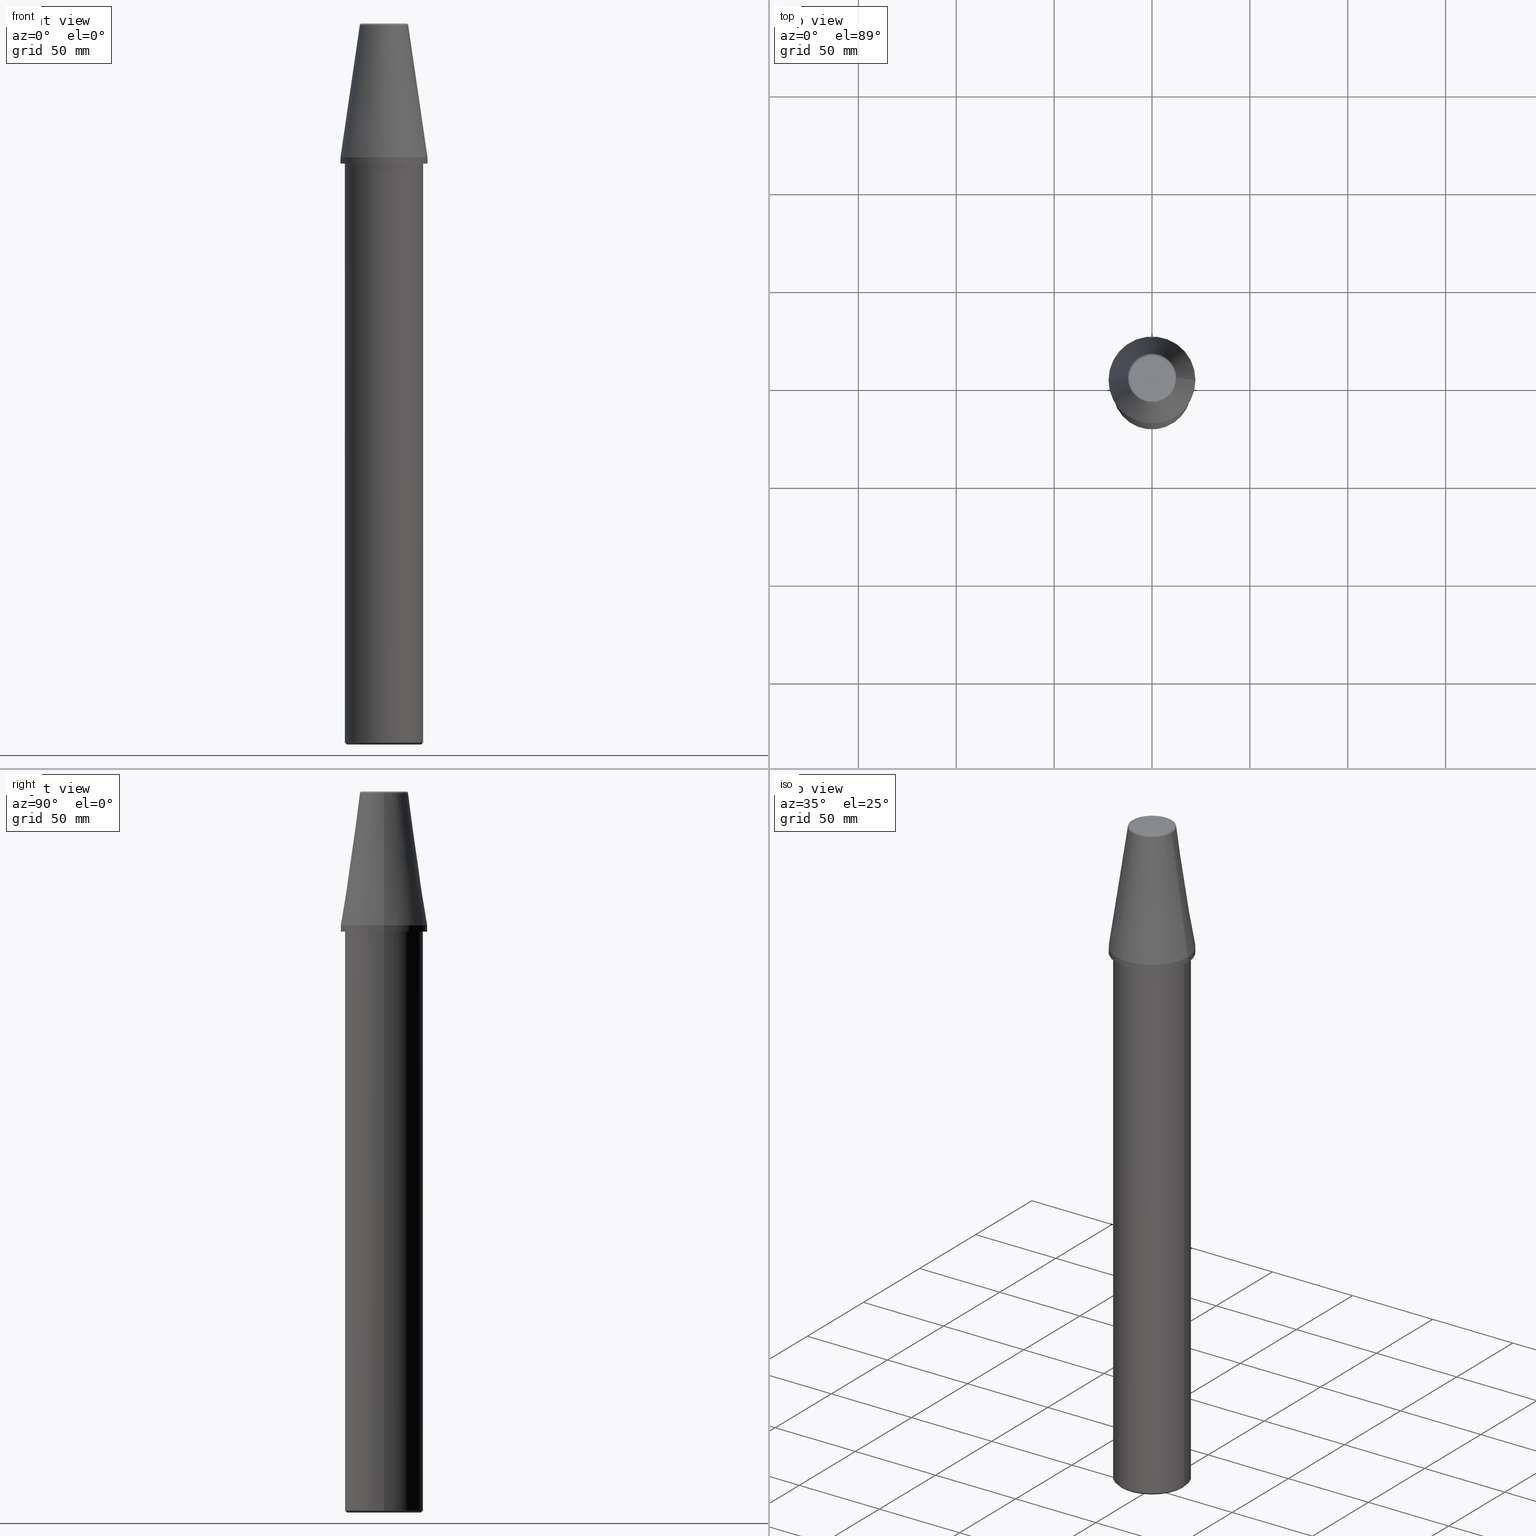
[diagram: canonical four-view strip — front | top / right | iso, engineering-drawing reading convention]
A machine part, canonical four-view strip (front | top / right | iso — engineering-drawing reading convention). The complete STEP part file that produces these views, byte-faithful:
ISO-10303-21;
HEADER;
FILE_DESCRIPTION (( 'STEP AP203' ),
    '1' );
FILE_NAME ('SK40 MASTER MANDRELL DIA40 L300.STEP',
    '2019-05-03T09:24:31',
    ( '' ),
    ( '' ),
    'SwSTEP 2.0',
    'SolidWorks 2014',
    '' );
FILE_SCHEMA (( 'CONFIG_CONTROL_DESIGN' ));
ENDSEC;

DATA;
#1 = CARTESIAN_POINT ( 'NONE',  ( 0.0000000000000000000, 0.0000000000000000000, 0.0000000000000000000 ) ) ;
#2 = CARTESIAN_POINT ( 'NONE',  ( -11.38516258961892900, 1.394280292314901300E-015, 67.40000000000000600 ) ) ;
#3 = EDGE_LOOP ( 'NONE', ( #4, #210, #168, #8 ) ) ;
#4 = ORIENTED_EDGE ( 'NONE', *, *, #221, .F. ) ;
#5 = CARTESIAN_POINT ( 'NONE',  ( 0.0000000000000000000, 0.0000000000000000000, 93.77645135286928700 ) ) ;
#6 = AXIS2_PLACEMENT_3D ( 'NONE', #60, #62, #65 ) ;
#7 = DIRECTION ( 'NONE',  ( 1.000000000000000000, 0.0000000000000000000, 0.0000000000000000000 ) ) ;
#8 = ORIENTED_EDGE ( 'NONE', *, *, #244, .F. ) ;
#9 = APPROVAL_STATUS ( 'not_yet_approved' ) ;
#10 = ORIENTED_EDGE ( 'NONE', *, *, #227, .T. ) ;
#11 = ORIENTED_EDGE ( 'NONE', *, *, #179, .F. ) ;
#12 = CARTESIAN_POINT ( 'NONE',  ( -11.38516258961892500, 22.77032517923785400, 68.40000000000000600 ) ) ;
#13 = CARTESIAN_POINT ( 'NONE',  ( -22.22499999999999400, 0.0000000000000000000, 0.0000000000000000000 ) ) ;
#14 =( NAMED_UNIT ( * ) PLANE_ANGLE_UNIT ( ) SI_UNIT ( $, .RADIAN. ) );
#15 = CARTESIAN_POINT ( 'NONE',  ( 0.0000000000000000000, 20.00000000000000000, -3.199999999999994400 ) ) ;
#16 = CALENDAR_DATE ( 2019, 3, 5 ) ;
#17 = FACE_OUTER_BOUND ( 'NONE', #332, .T. ) ;
#18 = CALENDAR_DATE ( 2019, 3, 5 ) ;
#19 = ADVANCED_FACE ( 'NONE', ( #40 ), #325, .T. ) ;
#20 = PERSON_AND_ORGANIZATION ( #236, #297 ) ;
#21 = CARTESIAN_POINT ( 'NONE',  ( 0.0000000000000000000, 0.0000000000000000000, -3.199999999999994400 ) ) ;
#22 = CARTESIAN_POINT ( 'NONE',  ( 11.90577287881111200, 23.81154575762221600, 68.40000000000000600 ) ) ;
#23 = CARTESIAN_POINT ( 'NONE',  ( -20.00000000000000000, 2.449293598294706500E-015, -3.200000000000008200 ) ) ;
#24 = DIRECTION ( 'NONE',  ( -0.0000000000000000000, -0.0000000000000000000, -1.000000000000000000 ) ) ;
#25 = EDGE_CURVE ( 'NONE', #264, #116, #68, .T. ) ;
#26 = COORDINATED_UNIVERSAL_TIME_OFFSET ( 5, 30, .AHEAD. ) ;
#27 = CARTESIAN_POINT ( 'NONE',  ( -11.38516258961892900, 1.394280292314901300E-015, 68.40000000000000600 ) ) ;
#28 = ORIENTED_EDGE ( 'NONE', *, *, #205, .T. ) ;
#29 = CARTESIAN_POINT ( 'NONE',  ( 11.90577287881111000, 0.0000000000000000000, 68.40000000000000600 ) ) ;
#30 = CARTESIAN_POINT ( 'NONE',  ( -11.90577287881110800, 23.81154575762221600, 68.40000000000000600 ) ) ;
#31 = CARTESIAN_POINT ( 'NONE',  ( -11.90577287881111000, 1.458036664741139400E-015, 68.40000000000000600 ) ) ;
#32 = CARTESIAN_POINT ( 'NONE',  ( 12.29956702818065600, 0.0000000000000000000, 68.05946917740814700 ) ) ;
#33 = EDGE_CURVE ( 'NONE', #115, #116, #287, .T. ) ;
#34 = CARTESIAN_POINT ( 'NONE',  ( -12.37469537611110200, 1.515463108277801300E-015, 67.54430822726730800 ) ) ;
#35 = VECTOR ( 'NONE', #186, 1000.000000000000000 ) ;
#36 = DIRECTION ( 'NONE',  ( 1.000000000000000000, 0.0000000000000000000, 0.0000000000000000000 ) ) ;
#37 = CARTESIAN_POINT ( 'NONE',  ( -11.38516258961892900, 1.530457565779663400E-015, 68.40000000000000600 ) ) ;
#38 = FACE_BOUND ( 'NONE', #216, .T. ) ;
#39 = CARTESIAN_POINT ( 'NONE',  ( 12.37469537611110200, 0.0000000000000000000, 67.54430822726730800 ) ) ;
#40 = FACE_OUTER_BOUND ( 'NONE', #238, .T. ) ;
#41 = CARTESIAN_POINT ( 'NONE',  ( 11.38516258961892900, 0.0000000000000000000, 68.40000000000000600 ) ) ;
#42 = DIRECTION ( 'NONE',  ( 0.0000000000000000000, 0.0000000000000000000, 1.000000000000000000 ) ) ;
#43 = AXIS2_PLACEMENT_3D ( 'NONE', #21, #24, #7 ) ;
#44 = PLANE ( 'NONE',  #80 ) ;
#45 = SHAPE_DEFINITION_REPRESENTATION ( #78, #93 ) ;
#46 = FACE_OUTER_BOUND ( 'NONE', #424, .T. ) ;
#47 = CIRCLE ( 'NONE', #128, 22.22500000000000100 ) ;
#48 = DIRECTION ( 'NONE',  ( 0.0000000000000000000, 0.0000000000000000000, 1.000000000000000000 ) ) ;
#49 = DIRECTION ( 'NONE',  ( 0.0000000000000000000, 0.0000000000000000000, -1.000000000000000000 ) ) ;
#50 = DIRECTION ( 'NONE',  ( -1.000000000000000000, 0.0000000000000000000, -0.0000000000000000000 ) ) ;
#51 = ORIENTED_EDGE ( 'NONE', *, *, #272, .T. ) ;
#52 = CIRCLE ( 'NONE', #117, 12.37469537611110200 ) ;
#53 = AXIS2_PLACEMENT_3D ( 'NONE', #135, #196, #36 ) ;
#54 = CARTESIAN_POINT ( 'NONE',  ( -11.38516258961892900, 1.530457565779663400E-015, 68.40000000000000600 ) ) ;
#55 = DIRECTION ( 'NONE',  ( 0.0000000000000000000, 0.0000000000000000000, -1.000000000000000000 ) ) ;
#56 = DIRECTION ( 'NONE',  ( -1.000000000000000000, 0.0000000000000000000, 0.0000000000000000000 ) ) ;
#57 = DIRECTION ( 'NONE',  ( 1.000000000000000000, 0.0000000000000000000, 0.0000000000000000000 ) ) ;
#58 = ADVANCED_FACE ( 'NONE', ( #131 ), #372, .T. ) ;
#59 = LINE ( 'NONE', #166, #190 ) ;
#60 = CARTESIAN_POINT ( 'NONE',  ( 0.0000000000000000000, 0.0000000000000000000, -298.9999999999999400 ) ) ;
#61 = LINE ( 'NONE', #215, #35 ) ;
#62 = DIRECTION ( 'NONE',  ( 0.0000000000000000000, 0.0000000000000000000, 1.000000000000000000 ) ) ;
#63 = EDGE_CURVE ( 'NONE', #114, #296, #268, .T. ) ;
#64 = ADVANCED_FACE ( 'NONE', ( #413 ), #154, .T. ) ;
#65 = DIRECTION ( 'NONE',  ( 1.000000000000000000, 0.0000000000000000000, 0.0000000000000000000 ) ) ;
#66 = CARTESIAN_POINT ( 'NONE',  ( 0.0000000000000000000, 0.0000000000000000000, 0.0000000000000000000 ) ) ;
#67 = CLOSED_SHELL ( 'NONE', ( #320, #64, #247, #299, #110, #19, #278, #150, #218, #58, #294, #276, #319 ) ) ;
#68 = CIRCLE ( 'NONE', #298, 20.00000000000000000 ) ;
#69 = COORDINATED_UNIVERSAL_TIME_OFFSET ( 5, 30, .AHEAD. ) ;
#70 = CARTESIAN_POINT ( 'NONE',  ( 0.0000000000000000000, 0.0000000000000000000, -3.200000000000008200 ) ) ;
#71 = AXIS2_PLACEMENT_3D ( 'NONE', #392, #127, #155 ) ;
#72 = DIRECTION ( 'NONE',  ( -0.0000000000000000000, -0.0000000000000000000, -1.000000000000000000 ) ) ;
#73 = DIRECTION ( 'NONE',  ( 1.000000000000000000, 0.0000000000000000000, 0.0000000000000000000 ) ) ;
#74 =( BOUNDED_SURFACE ( )  B_SPLINE_SURFACE ( 3, 3, ( 
 ( #225, #129, #12, #27 ),
 ( #29, #22, #30, #31 ),
 ( #32, #390, #411, #419 ),
 ( #39, #209, #188, #34 ) ),
 .UNSPECIFIED., .F., .F., .T. ) 
 B_SPLINE_SURFACE_WITH_KNOTS ( ( 4, 4 ),
 ( 4, 4 ),
 ( 0.0000000000000000000, 1.000000000000000000 ),
 ( 0.0000000000000000000, 1.000000000000000000 ),
 .UNSPECIFIED. ) 
 GEOMETRIC_REPRESENTATION_ITEM ( )  RATIONAL_B_SPLINE_SURFACE ( (
 ( 1.000000000000000000, 0.3333333333333334300, 0.3333333333333334300, 1.000000000000000000),
 ( 0.8376057965618084500, 0.2792019321872695700, 0.2792019321872695700, 0.8376057965618084500),
 ( 0.8376057965618084500, 0.2792019321872695700, 0.2792019321872695700, 0.8376057965618084500),
 ( 1.000000000000000000, 0.3333333333333334300, 0.3333333333333334300, 1.000000000000000000) ) ) 
 REPRESENTATION_ITEM ( '' )  SURFACE ( )  );
#75 = CARTESIAN_POINT ( 'NONE',  ( 12.37469537611110200, 2.118620309691396900E-015, 67.54430822726730800 ) ) ;
#76 = CIRCLE ( 'NONE', #97, 0.9999999999999991100 ) ;
#77 = DIRECTION ( 'NONE',  ( 0.0000000000000000000, 0.0000000000000000000, 1.000000000000000000 ) ) ;
#78 = PRODUCT_DEFINITION_SHAPE ( 'NONE', 'NONE',  #318 ) ;
#79 = CARTESIAN_POINT ( 'NONE',  ( 0.0000000000000000000, 9.500000000000000000, 68.40000000000000600 ) ) ;
#80 = AXIS2_PLACEMENT_3D ( 'NONE', #15, #49, #50 ) ;
#81 = CARTESIAN_POINT ( 'NONE',  ( 11.38516258961892900, 0.0000000000000000000, 68.40000000000000600 ) ) ;
#82 = CARTESIAN_POINT ( 'NONE',  ( 11.38516258961892900, -22.77032517923785400, 68.40000000000000600 ) ) ;
#83 = AXIS2_PLACEMENT_3D ( 'NONE', #164, #301, #167 ) ;
#84 = ORIENTED_EDGE ( 'NONE', *, *, #214, .F. ) ;
#85 = VECTOR ( 'NONE', #153, 1000.000000000000000 ) ;
#86 = CARTESIAN_POINT ( 'NONE',  ( 11.90577287881110300, -23.81154575762222000, 68.40000000000000600 ) ) ;
#87 = CARTESIAN_POINT ( 'NONE',  ( 11.38516258961892400, -22.77032517923785800, 68.40000000000000600 ) ) ;
#88 = AXIS2_PLACEMENT_3D ( 'NONE', #415, #408, #340 ) ;
#89 = DIRECTION ( 'NONE',  ( 0.0000000000000000000, 0.0000000000000000000, 1.000000000000000000 ) ) ;
#90 = CARTESIAN_POINT ( 'NONE',  ( -11.38516258961892900, 1.394280292314901300E-015, 68.40000000000000600 ) ) ;
#91 = DIRECTION ( 'NONE',  ( 1.000000000000000000, 0.0000000000000000000, -0.0000000000000000000 ) ) ;
#92 = ORIENTED_EDGE ( 'NONE', *, *, #255, .T. ) ;
#93 = ADVANCED_BREP_SHAPE_REPRESENTATION ( 'SK40 MASTER MANDRELL DIA40 L300', ( #355, #335 ), #363 ) ;
#94 = DIRECTION ( 'NONE',  ( 0.0000000000000000000, 0.0000000000000000000, 1.000000000000000000 ) ) ;
#95 = PLANE ( 'NONE',  #420 ) ;
#96 = CARTESIAN_POINT ( 'NONE',  ( -11.38516258961893300, -22.77032517923785400, 68.40000000000000600 ) ) ;
#97 = AXIS2_PLACEMENT_3D ( 'NONE', #2, #326, #329 ) ;
#98 = CARTESIAN_POINT ( 'NONE',  ( -11.38516258961892900, 1.530457565779663400E-015, 68.40000000000000600 ) ) ;
#99 = FACE_OUTER_BOUND ( 'NONE', #397, .T. ) ;
#100 = AXIS2_PLACEMENT_3D ( 'NONE', #142, #160, #151 ) ;
#101 = DIRECTION ( 'NONE',  ( 0.1443082272673069900, 1.767266086135363000E-017, -0.9895327864921743500 ) ) ;
#102 = CARTESIAN_POINT ( 'NONE',  ( 22.22499999999999400, 2.721777511104992100E-015, 0.0000000000000000000 ) ) ;
#103 = CARTESIAN_POINT ( 'NONE',  ( -11.38516258961892500, 22.77032517923785400, 68.40000000000000600 ) ) ;
#104 = CARTESIAN_POINT ( 'NONE',  ( -12.29956702818065800, -24.59913405636130100, 68.05946917740813300 ) ) ;
#105 = PRODUCT_RELATED_PRODUCT_CATEGORY ( 'detail', '', ( #405 ) ) ;
#106 = APPROVAL_DATE_TIME ( #133, #229 ) ;
#107 = LOCAL_TIME ( 14, 54, 31.00000000000000000, #230 ) ;
#108 = LOCAL_TIME ( 14, 54, 31.00000000000000000, #379 ) ;
#109 = CARTESIAN_POINT ( 'NONE',  ( 12.37469537611110200, -3.030926216555603000E-015, 67.54430822726730800 ) ) ;
#110 = ADVANCED_FACE ( 'NONE', ( #99 ), #243, .T. ) ;
#111 = CC_DESIGN_SECURITY_CLASSIFICATION ( #256, ( #289 ) ) ;
#112 = VECTOR ( 'NONE', #170, 1000.000000000000000 ) ;
#113 = CARTESIAN_POINT ( 'NONE',  ( 11.38516258961892900, 22.77032517923785400, 68.40000000000000600 ) ) ;
#114 = VERTEX_POINT ( 'NONE', #387 ) ;
#115 = VERTEX_POINT ( 'NONE', #400 ) ;
#116 = VERTEX_POINT ( 'NONE', #385 ) ;
#117 = AXIS2_PLACEMENT_3D ( 'NONE', #137, #121, #120 ) ;
#118 = PERSON_AND_ORGANIZATION_ROLE ( 'design_owner' ) ;
#119 = AXIS2_PLACEMENT_3D ( 'NONE', #184, #183, #181 ) ;
#120 = DIRECTION ( 'NONE',  ( -1.000000000000000000, 0.0000000000000000000, 0.0000000000000000000 ) ) ;
#121 = DIRECTION ( 'NONE',  ( 0.0000000000000000000, 0.0000000000000000000, -1.000000000000000000 ) ) ;
#122 = CALENDAR_DATE ( 2019, 3, 5 ) ;
#123 = FACE_OUTER_BOUND ( 'NONE', #284, .T. ) ;
#124 = CARTESIAN_POINT ( 'NONE',  ( -12.37469537611110200, 1.515463108277801500E-015, 67.54430822726730800 ) ) ;
#125 = CARTESIAN_POINT ( 'NONE',  ( -12.37469537611110400, -24.74939075222219700, 67.54430822726730800 ) ) ;
#126 = CARTESIAN_POINT ( 'NONE',  ( 12.37469537611109700, -24.74939075222219700, 67.54430822726730800 ) ) ;
#127 = DIRECTION ( 'NONE',  ( 0.0000000000000000000, 0.0000000000000000000, 1.000000000000000000 ) ) ;
#128 = AXIS2_PLACEMENT_3D ( 'NONE', #204, #202, #192 ) ;
#129 = CARTESIAN_POINT ( 'NONE',  ( 11.38516258961892900, 22.77032517923785400, 68.40000000000000600 ) ) ;
#130 = ORIENTED_EDGE ( 'NONE', *, *, #272, .F. ) ;
#131 = FACE_OUTER_BOUND ( 'NONE', #364, .T. ) ;
#132 = AXIS2_PLACEMENT_3D ( 'NONE', #393, #357, #381 ) ;
#133 = DATE_AND_TIME ( #18, #354 ) ;
#134 = VERTEX_POINT ( 'NONE', #241 ) ;
#135 = CARTESIAN_POINT ( 'NONE',  ( 0.0000000000000000000, 0.0000000000000000000, -3.199999999999994400 ) ) ;
#136 = AXIS2_PLACEMENT_3D ( 'NONE', #191, #383, #403 ) ;
#137 = CARTESIAN_POINT ( 'NONE',  ( 0.0000000000000000000, 0.0000000000000000000, 67.54430822726730800 ) ) ;
#138 = ORIENTED_EDGE ( 'NONE', *, *, #351, .F. ) ;
#139 = VERTEX_POINT ( 'NONE', #375 ) ;
#140 = AXIS2_PLACEMENT_3D ( 'NONE', #271, #382, #235 ) ;
#141 = VECTOR ( 'NONE', #101, 1000.000000000000000 ) ;
#142 = CARTESIAN_POINT ( 'NONE',  ( 0.0000000000000000000, 0.0000000000000000000, 93.77645135286928700 ) ) ;
#143 = CYLINDRICAL_SURFACE ( 'NONE', #158, 22.22500000000000100 ) ;
#144 =( NAMED_UNIT ( * ) SI_UNIT ( $, .STERADIAN. ) SOLID_ANGLE_UNIT ( ) );
#145 = CARTESIAN_POINT ( 'NONE',  ( -22.22500000000000100, 2.721777511104992800E-015, -3.199999999999994400 ) ) ;
#146 = VECTOR ( 'NONE', #220, 1000.000000000000000 ) ;
#147 = FACE_OUTER_BOUND ( 'NONE', #281, .T. ) ;
#148 = FACE_OUTER_BOUND ( 'NONE', #3, .T. ) ;
#149 = APPROVAL_STATUS ( 'not_yet_approved' ) ;
#150 = ADVANCED_FACE ( 'NONE', ( #309 ), #425, .T. ) ;
#151 = DIRECTION ( 'NONE',  ( 1.000000000000000000, 0.0000000000000000000, 0.0000000000000000000 ) ) ;
#152 = AXIS2_PLACEMENT_3D ( 'NONE', #348, #373, #374 ) ;
#153 = DIRECTION ( 'NONE',  ( 0.7071067811865474600, 0.0000000000000000000, 0.7071067811865475700 ) ) ;
#154 = CYLINDRICAL_SURFACE ( 'NONE', #132, 20.00000000000000000 ) ;
#155 = DIRECTION ( 'NONE',  ( 1.000000000000000000, 0.0000000000000000000, 0.0000000000000000000 ) ) ;
#156 = ORIENTED_EDGE ( 'NONE', *, *, #173, .F. ) ;
#157 = CARTESIAN_POINT ( 'NONE',  ( 11.90577287881111000, -2.916073329482278700E-015, 68.40000000000000600 ) ) ;
#158 = AXIS2_PLACEMENT_3D ( 'NONE', #5, #77, #57 ) ;
#159 = CARTESIAN_POINT ( 'NONE',  ( 19.00000000000000000, 0.0000000000000000000, -299.9999999999999400 ) ) ;
#160 = DIRECTION ( 'NONE',  ( 0.0000000000000000000, 0.0000000000000000000, 1.000000000000000000 ) ) ;
#161 = VERTEX_POINT ( 'NONE', #223 ) ;
#162 = CARTESIAN_POINT ( 'NONE',  ( 20.00000000000000000, 0.0000000000000000000, -298.9999999999999400 ) ) ;
#163 = PERSON_AND_ORGANIZATION ( #236, #297 ) ;
#164 = CARTESIAN_POINT ( 'NONE',  ( 0.0000000000000000000, 0.0000000000000000000, -298.9999999999999400 ) ) ;
#165 = EDGE_CURVE ( 'NONE', #139, #416, #47, .T. ) ;
#166 = CARTESIAN_POINT ( 'NONE',  ( -20.00000000000000000, 2.449293598294706500E-015, 75.00849435290182000 ) ) ;
#167 = DIRECTION ( 'NONE',  ( 1.000000000000000000, 0.0000000000000000000, 0.0000000000000000000 ) ) ;
#168 = ORIENTED_EDGE ( 'NONE', *, *, #240, .T. ) ;
#169 = CYLINDRICAL_SURFACE ( 'NONE', #100, 22.22500000000000100 ) ;
#170 = DIRECTION ( 'NONE',  ( -0.1443082272673069900, 0.0000000000000000000, -0.9895327864921743500 ) ) ;
#171 = CARTESIAN_POINT ( 'NONE',  ( 12.29956702818064900, -24.59913405636130100, 68.05946917740813300 ) ) ;
#172 = ORIENTED_EDGE ( 'NONE', *, *, #25, .T. ) ;
#173 = EDGE_CURVE ( 'NONE', #115, #161, #239, .T. ) ;
#174 = VECTOR ( 'NONE', #361, 1000.000000000000000 ) ;
#175 = CIRCLE ( 'NONE', #6, 20.00000000000000000 ) ;
#176 = CONICAL_SURFACE ( 'NONE', #83, 20.00000000000000000, 0.7853981633974482800 ) ;
#177 = ORIENTED_EDGE ( 'NONE', *, *, #311, .F. ) ;
#178 = DATE_TIME_ROLE ( 'creation_date' ) ;
#179 = EDGE_CURVE ( 'NONE', #359, #416, #263, .T. ) ;
#180 = ORIENTED_EDGE ( 'NONE', *, *, #255, .F. ) ;
#181 = DIRECTION ( 'NONE',  ( 1.000000000000000000, 0.0000000000000000000, 0.0000000000000000000 ) ) ;
#182 = APPLICATION_PROTOCOL_DEFINITION ( 'international standard', 'config_control_design', 1994, #414 ) ;
#183 = DIRECTION ( 'NONE',  ( 0.0000000000000000000, 0.0000000000000000000, 1.000000000000000000 ) ) ;
#184 = CARTESIAN_POINT ( 'NONE',  ( 0.0000000000000000000, 0.0000000000000000000, -298.9999999999999400 ) ) ;
#185 = CARTESIAN_POINT ( 'NONE',  ( 22.22500000000000100, 0.0000000000000000000, 93.77645135286928700 ) ) ;
#186 = DIRECTION ( 'NONE',  ( -0.7071067811865474600, 8.659560562354931600E-017, 0.7071067811865475700 ) ) ;
#187 = DATE_AND_TIME ( #122, #338 ) ;
#188 = CARTESIAN_POINT ( 'NONE',  ( -12.37469537611109900, 24.74939075222219700, 67.54430822726730800 ) ) ;
#189 = APPROVAL_PERSON_ORGANIZATION ( #222, #317, #333 ) ;
#190 = VECTOR ( 'NONE', #89, 1000.000000000000000 ) ;
#191 = CARTESIAN_POINT ( 'NONE',  ( 0.0000000000000000000, 0.0000000000000000000, 0.0000000000000000000 ) ) ;
#192 = DIRECTION ( 'NONE',  ( 1.000000000000000000, 0.0000000000000000000, 0.0000000000000000000 ) ) ;
#193 = APPROVAL_ROLE ( '' ) ;
#194 = CARTESIAN_POINT ( 'NONE',  ( 11.38516258961892900, 0.0000000000000000000, 68.40000000000000600 ) ) ;
#195 = EDGE_CURVE ( 'NONE', #134, #161, #61, .T. ) ;
#196 = DIRECTION ( 'NONE',  ( -0.0000000000000000000, -0.0000000000000000000, -1.000000000000000000 ) ) ;
#197 = CARTESIAN_POINT ( 'NONE',  ( 11.38516258961892900, -2.788560584629802600E-015, 68.40000000000000600 ) ) ;
#198 = ORIENTED_EDGE ( 'NONE', *, *, #248, .F. ) ;
#199 = VERTEX_POINT ( 'NONE', #159 ) ;
#200 = ORIENTED_EDGE ( 'NONE', *, *, #336, .T. ) ;
#201 = CIRCLE ( 'NONE', #71, 19.00000000000000000 ) ;
#202 = DIRECTION ( 'NONE',  ( -0.0000000000000000000, -0.0000000000000000000, -1.000000000000000000 ) ) ;
#203 = DIRECTION ( 'NONE',  ( 0.0000000000000000000, 1.000000000000000000, 0.0000000000000000000 ) ) ;
#204 = CARTESIAN_POINT ( 'NONE',  ( 0.0000000000000000000, 0.0000000000000000000, 0.0000000000000000000 ) ) ;
#205 = EDGE_CURVE ( 'NONE', #199, #115, #300, .T. ) ;
#206 =( BOUNDED_SURFACE ( )  B_SPLINE_SURFACE ( 3, 3, ( 
 ( #90, #96, #87, #197 ),
 ( #378, #217, #86, #157 ),
 ( #399, #104, #171, #380 ),
 ( #124, #125, #126, #109 ) ),
 .UNSPECIFIED., .F., .F., .F. ) 
 B_SPLINE_SURFACE_WITH_KNOTS ( ( 4, 4 ),
 ( 4, 4 ),
 ( 0.0000000000000000000, 1.000000000000000000 ),
 ( 0.0000000000000000000, 1.000000000000000000 ),
 .UNSPECIFIED. ) 
 GEOMETRIC_REPRESENTATION_ITEM ( )  RATIONAL_B_SPLINE_SURFACE ( (
 ( 1.000000000000000000, 0.3333333333333334300, 0.3333333333333334300, 1.000000000000000000),
 ( 0.8376057965618084500, 0.2792019321872695700, 0.2792019321872695700, 0.8376057965618084500),
 ( 0.8376057965618084500, 0.2792019321872695700, 0.2792019321872695700, 0.8376057965618084500),
 ( 1.000000000000000000, 0.3333333333333334300, 0.3333333333333334300, 1.000000000000000000) ) ) 
 REPRESENTATION_ITEM ( '' )  SURFACE ( )  );
#207 = COORDINATED_UNIVERSAL_TIME_OFFSET ( 5, 30, .AHEAD. ) ;
#208 = DIRECTION ( 'NONE',  ( 1.000000000000000000, 0.0000000000000000000, 0.0000000000000000000 ) ) ;
#209 = CARTESIAN_POINT ( 'NONE',  ( 12.37469537611110200, 24.74939075222219700, 67.54430822726730800 ) ) ;
#210 = ORIENTED_EDGE ( 'NONE', *, *, #214, .T. ) ;
#211 = ORIENTED_EDGE ( 'NONE', *, *, #285, .T. ) ;
#212 = CIRCLE ( 'NONE', #43, 22.22500000000000100 ) ;
#213 = DIRECTION ( 'NONE',  ( 1.000000000000000000, 0.0000000000000000000, 0.0000000000000000000 ) ) ;
#214 = EDGE_CURVE ( 'NONE', #296, #114, #52, .T. ) ;
#215 = CARTESIAN_POINT ( 'NONE',  ( -20.00000000000000000, 2.449293598294706500E-015, -298.9999999999999400 ) ) ;
#216 = EDGE_LOOP ( 'NONE', ( #341, #327 ) ) ;
#217 = CARTESIAN_POINT ( 'NONE',  ( -11.90577287881111500, -23.81154575762221600, 68.40000000000000600 ) ) ;
#218 = ADVANCED_FACE ( 'NONE', ( #123 ), #169, .T. ) ;
#219 = CALENDAR_DATE ( 2019, 3, 5 ) ;
#220 = DIRECTION ( 'NONE',  ( 0.0000000000000000000, 0.0000000000000000000, 1.000000000000000000 ) ) ;
#221 = EDGE_CURVE ( 'NONE', #296, #416, #347, .T. ) ;
#222 = PERSON_AND_ORGANIZATION ( #236, #297 ) ;
#223 = CARTESIAN_POINT ( 'NONE',  ( -20.00000000000000000, 2.449293598294706500E-015, -298.9999999999999400 ) ) ;
#224 = CC_DESIGN_APPROVAL ( #229, ( #256 ) ) ;
#225 = CARTESIAN_POINT ( 'NONE',  ( 11.38516258961892900, 0.0000000000000000000, 68.40000000000000600 ) ) ;
#226 = ORIENTED_EDGE ( 'NONE', *, *, #307, .T. ) ;
#227 = EDGE_CURVE ( 'NONE', #409, #280, #246, .T. ) ;
#228 = EDGE_LOOP ( 'NONE', ( #92, #51 ) ) ;
#229 = APPROVAL ( #350, 'UNSPECIFIED' ) ;
#230 = COORDINATED_UNIVERSAL_TIME_OFFSET ( 5, 30, .AHEAD. ) ;
#231 = CIRCLE ( 'NONE', #88, 22.22500000000000100 ) ;
#232 = ORIENTED_EDGE ( 'NONE', *, *, #205, .F. ) ;
#233 = EDGE_CURVE ( 'NONE', #409, #114, #76, .T. ) ;
#234 = VERTEX_POINT ( 'NONE', #145 ) ;
#235 = DIRECTION ( 'NONE',  ( 1.000000000000000000, 0.0000000000000000000, 0.0000000000000000000 ) ) ;
#236 = PERSON ( 'UNSPECIFIED', 'UNSPECIFIED', 'UNSPECIFIED', ('UNSPECIFIED'), ('UNSPECIFIED'), ('UNSPECIFIED') ) ;
#237 = CARTESIAN_POINT ( 'NONE',  ( 22.22499999999999400, 2.721777511104992100E-015, 0.0000000000000000000 ) ) ;
#238 = EDGE_LOOP ( 'NONE', ( #418, #275, #253, #211 ) ) ;
#239 = CIRCLE ( 'NONE', #119, 20.00000000000000000 ) ;
#240 = EDGE_CURVE ( 'NONE', #114, #139, #304, .T. ) ;
#241 = CARTESIAN_POINT ( 'NONE',  ( -19.00000000000000000, 2.388061258337338900E-015, -299.9999999999999400 ) ) ;
#242 = CC_DESIGN_DATE_AND_TIME_ASSIGNMENT ( #187, #286, ( #256 ) ) ;
#243 = CONICAL_SURFACE ( 'NONE', #136, 22.22499999999999400, 0.1448138465474190000 ) ;
#244 = EDGE_CURVE ( 'NONE', #416, #139, #231, .T. ) ;
#245 = CARTESIAN_POINT ( 'NONE',  ( 22.22500000000000100, 0.0000000000000000000, -3.199999999999994400 ) ) ;
#246 =( BOUNDED_CURVE ( )  B_SPLINE_CURVE ( 3, ( #98, #103, #113, #81 ),
 .UNSPECIFIED., .F., .F. ) 
 B_SPLINE_CURVE_WITH_KNOTS ( ( 4, 4 ),
 ( 0.0000000000000000000, 1.000000000000000000 ),
 .UNSPECIFIED. ) 
 CURVE ( )  GEOMETRIC_REPRESENTATION_ITEM ( )  RATIONAL_B_SPLINE_CURVE ( ( 1.000000000000000000, 0.3333333333333333700, 0.3333333333333333700, 1.000000000000000000 ) ) 
 REPRESENTATION_ITEM ( '' )  );
#247 = ADVANCED_FACE ( 'NONE', ( #17 ), #176, .T. ) ;
#248 = EDGE_CURVE ( 'NONE', #134, #199, #201, .T. ) ;
#249 = ORIENTED_EDGE ( 'NONE', *, *, #63, .T. ) ;
#250 = ORIENTED_EDGE ( 'NONE', *, *, #307, .F. ) ;
#251 = APPROVAL_PERSON_ORGANIZATION ( #342, #282, #314 ) ;
#252 = CARTESIAN_POINT ( 'NONE',  ( -22.22500000000000100, 2.721777511104992800E-015, 93.77645135286928700 ) ) ;
#253 = ORIENTED_EDGE ( 'NONE', *, *, #33, .T. ) ;
#254 = CC_DESIGN_PERSON_AND_ORGANIZATION_ASSIGNMENT ( #345, #417, ( #256 ) ) ;
#255 = EDGE_CURVE ( 'NONE', #359, #234, #353, .T. ) ;
#256 = SECURITY_CLASSIFICATION ( '', '', #273 ) ;
#257 = DATE_AND_TIME ( #16, #430 ) ;
#258 = ORIENTED_EDGE ( 'NONE', *, *, #195, .F. ) ;
#259 = ORIENTED_EDGE ( 'NONE', *, *, #165, .T. ) ;
#260 = CC_DESIGN_PERSON_AND_ORGANIZATION_ASSIGNMENT ( #349, #356, ( #289 ) ) ;
#261 = PERSON_AND_ORGANIZATION_ROLE ( 'creator' ) ;
#262 = ORIENTED_EDGE ( 'NONE', *, *, #240, .F. ) ;
#263 = LINE ( 'NONE', #185, #146 ) ;
#264 = VERTEX_POINT ( 'NONE', #23 ) ;
#265 = AXIS2_PLACEMENT_3D ( 'NONE', #410, #402, #395 ) ;
#266 = ORIENTED_EDGE ( 'NONE', *, *, #221, .T. ) ;
#267 = CIRCLE ( 'NONE', #427, 19.00000000000000000 ) ;
#268 = CIRCLE ( 'NONE', #265, 12.37469537611110200 ) ;
#269 = CC_DESIGN_PERSON_AND_ORGANIZATION_ASSIGNMENT ( #305, #261, ( #289 ) ) ;
#270 = EDGE_LOOP ( 'NONE', ( #130, #315, #259, #11 ) ) ;
#271 = CARTESIAN_POINT ( 'NONE',  ( 0.0000000000000000000, 0.0000000000000000000, -298.9999999999999400 ) ) ;
#272 = EDGE_CURVE ( 'NONE', #234, #359, #212, .T. ) ;
#273 = SECURITY_CLASSIFICATION_LEVEL ( 'unclassified' ) ;
#274 =( LENGTH_UNIT ( ) NAMED_UNIT ( * ) SI_UNIT ( .MILLI., .METRE. ) );
#275 = ORIENTED_EDGE ( 'NONE', *, *, #283, .T. ) ;
#276 = ADVANCED_FACE ( 'NONE', ( #360 ), #74, .T. ) ;
#277 = CC_DESIGN_APPROVAL ( #282, ( #289 ) ) ;
#278 = ADVANCED_FACE ( 'NONE', ( #38, #346 ), #44, .T. ) ;
#279 = ORIENTED_EDGE ( 'NONE', *, *, #233, .F. ) ;
#280 = VERTEX_POINT ( 'NONE', #41 ) ;
#281 = EDGE_LOOP ( 'NONE', ( #226, #290, #84, #138 ) ) ;
#282 = APPROVAL ( #9, 'UNSPECIFIED' ) ;
#283 = EDGE_CURVE ( 'NONE', #161, #115, #175, .T. ) ;
#284 = EDGE_LOOP ( 'NONE', ( #177, #180, #426, #308 ) ) ;
#285 = EDGE_CURVE ( 'NONE', #116, #264, #371, .T. ) ;
#286 = DATE_TIME_ROLE ( 'classification_date' ) ;
#287 = LINE ( 'NONE', #334, #174 ) ;
#288 = APPROVAL_DATE_TIME ( #291, #282 ) ;
#289 = PRODUCT_DEFINITION_FORMATION_WITH_SPECIFIED_SOURCE ( 'ANY', '', #405, .NOT_KNOWN. ) ;
#290 = ORIENTED_EDGE ( 'NONE', *, *, #233, .T. ) ;
#291 = DATE_AND_TIME ( #219, #108 ) ;
#292 = LINE ( 'NONE', #252, #398 ) ;
#293 = AXIS2_PLACEMENT_3D ( 'NONE', #330, #339, #358 ) ;
#294 = ADVANCED_FACE ( 'NONE', ( #148 ), #312, .T. ) ;
#295 = ORIENTED_EDGE ( 'NONE', *, *, #63, .F. ) ;
#296 = VERTEX_POINT ( 'NONE', #75 ) ;
#297 = ORGANIZATION ( 'UNSPECIFIED', 'UNSPECIFIED', '' ) ;
#298 = AXIS2_PLACEMENT_3D ( 'NONE', #362, #367, #368 ) ;
#299 = ADVANCED_FACE ( 'NONE', ( #423 ), #143, .T. ) ;
#300 = LINE ( 'NONE', #162, #85 ) ;
#301 = DIRECTION ( 'NONE',  ( 0.0000000000000000000, 0.0000000000000000000, 1.000000000000000000 ) ) ;
#302 = CC_DESIGN_DATE_AND_TIME_ASSIGNMENT ( #257, #178, ( #318 ) ) ;
#303 = DIRECTION ( 'NONE',  ( 1.000000000000000000, 0.0000000000000000000, 0.0000000000000000000 ) ) ;
#304 = LINE ( 'NONE', #13, #112 ) ;
#305 = PERSON_AND_ORGANIZATION ( #236, #297 ) ;
#306 = ORIENTED_EDGE ( 'NONE', *, *, #248, .T. ) ;
#307 = EDGE_CURVE ( 'NONE', #280, #409, #388, .T. ) ;
#308 = ORIENTED_EDGE ( 'NONE', *, *, #244, .T. ) ;
#309 = FACE_OUTER_BOUND ( 'NONE', #376, .T. ) ;
#310 = CC_DESIGN_PERSON_AND_ORGANIZATION_ASSIGNMENT ( #406, #331, ( #318 ) ) ;
#311 = EDGE_CURVE ( 'NONE', #234, #139, #292, .T. ) ;
#312 = CONICAL_SURFACE ( 'NONE', #429, 22.22499999999999400, 0.1448138465474190000 ) ;
#313 = CC_DESIGN_APPROVAL ( #317, ( #318 ) ) ;
#314 = APPROVAL_ROLE ( '' ) ;
#315 = ORIENTED_EDGE ( 'NONE', *, *, #311, .T. ) ;
#316 = ORIENTED_EDGE ( 'NONE', *, *, #33, .F. ) ;
#317 = APPROVAL ( #149, 'UNSPECIFIED' ) ;
#318 = PRODUCT_DEFINITION ( 'UNKNOWN', '', #289, #428 ) ;
#319 = ADVANCED_FACE ( 'NONE', ( #46 ), #95, .T. ) ;
#320 = ADVANCED_FACE ( 'NONE', ( #147 ), #206, .T. ) ;
#321 = EDGE_CURVE ( 'NONE', #199, #134, #267, .T. ) ;
#322 = APPLICATION_PROTOCOL_DEFINITION ( 'international standard', 'config_control_design', 1994, #328 ) ;
#323 = CC_DESIGN_PERSON_AND_ORGANIZATION_ASSIGNMENT ( #20, #118, ( #405 ) ) ;
#324 = EDGE_LOOP ( 'NONE', ( #279, #10, #384, #295 ) ) ;
#325 = CYLINDRICAL_SURFACE ( 'NONE', #293, 20.00000000000000000 ) ;
#326 = DIRECTION ( 'NONE',  ( -1.224646799147353200E-016, -1.000000000000000000, 0.0000000000000000000 ) ) ;
#327 = ORIENTED_EDGE ( 'NONE', *, *, #25, .F. ) ;
#328 = APPLICATION_CONTEXT ( 'configuration controlled 3d designs of mechanical parts and assemblies' ) ;
#329 = DIRECTION ( 'NONE',  ( -1.000000000000000000, 1.224646799147353500E-016, 0.0000000000000000000 ) ) ;
#330 = CARTESIAN_POINT ( 'NONE',  ( 0.0000000000000000000, 0.0000000000000000000, 75.00849435290182000 ) ) ;
#331 = PERSON_AND_ORGANIZATION_ROLE ( 'creator' ) ;
#332 = EDGE_LOOP ( 'NONE', ( #377, #412, #156, #232 ) ) ;
#333 = APPROVAL_ROLE ( '' ) ;
#334 = CARTESIAN_POINT ( 'NONE',  ( 20.00000000000000000, 0.0000000000000000000, 75.00849435290182000 ) ) ;
#335 = AXIS2_PLACEMENT_3D ( 'NONE', #1, #337, #303 ) ;
#336 = EDGE_CURVE ( 'NONE', #161, #264, #59, .T. ) ;
#337 = DIRECTION ( 'NONE',  ( 0.0000000000000000000, 0.0000000000000000000, 1.000000000000000000 ) ) ;
#338 = LOCAL_TIME ( 14, 54, 31.00000000000000000, #26 ) ;
#339 = DIRECTION ( 'NONE',  ( 0.0000000000000000000, 0.0000000000000000000, 1.000000000000000000 ) ) ;
#340 = DIRECTION ( 'NONE',  ( 1.000000000000000000, 0.0000000000000000000, 0.0000000000000000000 ) ) ;
#341 = ORIENTED_EDGE ( 'NONE', *, *, #285, .F. ) ;
#342 = PERSON_AND_ORGANIZATION ( #236, #297 ) ;
#343 = CIRCLE ( 'NONE', #401, 0.9999999999999991100 ) ;
#344 = CARTESIAN_POINT ( 'NONE',  ( 11.38516258961892900, 0.0000000000000000000, 67.40000000000000600 ) ) ;
#345 = PERSON_AND_ORGANIZATION ( #236, #297 ) ;
#346 = FACE_OUTER_BOUND ( 'NONE', #228, .T. ) ;
#347 = LINE ( 'NONE', #102, #141 ) ;
#348 = CARTESIAN_POINT ( 'NONE',  ( 0.0000000000000000000, 19.00000000000000000, -299.9999999999999400 ) ) ;
#349 = PERSON_AND_ORGANIZATION ( #236, #297 ) ;
#350 = APPROVAL_STATUS ( 'not_yet_approved' ) ;
#351 = EDGE_CURVE ( 'NONE', #280, #296, #343, .T. ) ;
#352 = CALENDAR_DATE ( 2019, 3, 5 ) ;
#353 = CIRCLE ( 'NONE', #53, 22.22500000000000100 ) ;
#354 = LOCAL_TIME ( 14, 54, 31.00000000000000000, #69 ) ;
#355 = MANIFOLD_SOLID_BREP ( 'Revolve3', #67 ) ;
#356 = PERSON_AND_ORGANIZATION_ROLE ( 'design_supplier' ) ;
#357 = DIRECTION ( 'NONE',  ( 0.0000000000000000000, 0.0000000000000000000, 1.000000000000000000 ) ) ;
#358 = DIRECTION ( 'NONE',  ( 1.000000000000000000, 0.0000000000000000000, 0.0000000000000000000 ) ) ;
#359 = VERTEX_POINT ( 'NONE', #245 ) ;
#360 = FACE_OUTER_BOUND ( 'NONE', #324, .T. ) ;
#361 = DIRECTION ( 'NONE',  ( 0.0000000000000000000, 0.0000000000000000000, 1.000000000000000000 ) ) ;
#362 = CARTESIAN_POINT ( 'NONE',  ( 0.0000000000000000000, 0.0000000000000000000, -3.200000000000008200 ) ) ;
#363 =( GEOMETRIC_REPRESENTATION_CONTEXT ( 3 ) GLOBAL_UNCERTAINTY_ASSIGNED_CONTEXT ( ( #421 ) ) GLOBAL_UNIT_ASSIGNED_CONTEXT ( ( #274, #14, #144 ) ) REPRESENTATION_CONTEXT ( 'NONE', 'WORKASPACE' ) );
#364 = EDGE_LOOP ( 'NONE', ( #407, #198 ) ) ;
#365 = ORIENTED_EDGE ( 'NONE', *, *, #283, .F. ) ;
#366 = ORIENTED_EDGE ( 'NONE', *, *, #165, .F. ) ;
#367 = DIRECTION ( 'NONE',  ( -0.0000000000000000000, -0.0000000000000000000, -1.000000000000000000 ) ) ;
#368 = DIRECTION ( 'NONE',  ( 1.000000000000000000, 0.0000000000000000000, 0.0000000000000000000 ) ) ;
#369 = EDGE_LOOP ( 'NONE', ( #389, #200, #172, #316 ) ) ;
#370 = APPROVAL_DATE_TIME ( #394, #317 ) ;
#371 = CIRCLE ( 'NONE', #431, 20.00000000000000000 ) ;
#372 = PLANE ( 'NONE',  #152 ) ;
#373 = DIRECTION ( 'NONE',  ( 0.0000000000000000000, 0.0000000000000000000, -1.000000000000000000 ) ) ;
#374 = DIRECTION ( 'NONE',  ( -1.000000000000000000, 0.0000000000000000000, -0.0000000000000000000 ) ) ;
#375 = CARTESIAN_POINT ( 'NONE',  ( -22.22499999999999400, 0.0000000000000000000, 0.0000000000000000000 ) ) ;
#376 = EDGE_LOOP ( 'NONE', ( #258, #306, #28, #365 ) ) ;
#377 = ORIENTED_EDGE ( 'NONE', *, *, #321, .T. ) ;
#378 = CARTESIAN_POINT ( 'NONE',  ( -11.90577287881111000, 1.458036664741139400E-015, 68.40000000000000600 ) ) ;
#379 = COORDINATED_UNIVERSAL_TIME_OFFSET ( 5, 30, .AHEAD. ) ;
#380 = CARTESIAN_POINT ( 'NONE',  ( 12.29956702818065600, -3.012525078391951800E-015, 68.05946917740814700 ) ) ;
#381 = DIRECTION ( 'NONE',  ( 1.000000000000000000, 0.0000000000000000000, 0.0000000000000000000 ) ) ;
#382 = DIRECTION ( 'NONE',  ( 0.0000000000000000000, 0.0000000000000000000, 1.000000000000000000 ) ) ;
#383 = DIRECTION ( 'NONE',  ( 0.0000000000000000000, 0.0000000000000000000, -1.000000000000000000 ) ) ;
#384 = ORIENTED_EDGE ( 'NONE', *, *, #351, .T. ) ;
#385 = CARTESIAN_POINT ( 'NONE',  ( 20.00000000000000000, 0.0000000000000000000, -3.200000000000008200 ) ) ;
#386 = CARTESIAN_POINT ( 'NONE',  ( -11.38516258961893300, -22.77032517923785400, 68.40000000000000600 ) ) ;
#387 = CARTESIAN_POINT ( 'NONE',  ( -12.37469537611110200, 0.0000000000000000000, 67.54430822726730800 ) ) ;
#388 =( BOUNDED_CURVE ( )  B_SPLINE_CURVE ( 3, ( #194, #82, #386, #37 ),
 .UNSPECIFIED., .F., .T. ) 
 B_SPLINE_CURVE_WITH_KNOTS ( ( 4, 4 ),
 ( 0.0000000000000000000, 1.000000000000000000 ),
 .UNSPECIFIED. ) 
 CURVE ( )  GEOMETRIC_REPRESENTATION_ITEM ( )  RATIONAL_B_SPLINE_CURVE ( ( 1.000000000000000000, 0.3333333333333333700, 0.3333333333333333700, 1.000000000000000000 ) ) 
 REPRESENTATION_ITEM ( '' )  );
#389 = ORIENTED_EDGE ( 'NONE', *, *, #173, .T. ) ;
#390 = CARTESIAN_POINT ( 'NONE',  ( 12.29956702818065600, 24.59913405636130100, 68.05946917740813300 ) ) ;
#391 = APPROVAL_PERSON_ORGANIZATION ( #163, #229, #193 ) ;
#392 = CARTESIAN_POINT ( 'NONE',  ( 0.0000000000000000000, 0.0000000000000000000, -299.9999999999999400 ) ) ;
#393 = CARTESIAN_POINT ( 'NONE',  ( 0.0000000000000000000, 0.0000000000000000000, 75.00849435290182000 ) ) ;
#394 = DATE_AND_TIME ( #352, #107 ) ;
#395 = DIRECTION ( 'NONE',  ( -1.000000000000000000, 0.0000000000000000000, 0.0000000000000000000 ) ) ;
#396 = MECHANICAL_CONTEXT ( 'NONE', #414, 'mechanical' ) ;
#397 = EDGE_LOOP ( 'NONE', ( #249, #266, #366, #262 ) ) ;
#398 = VECTOR ( 'NONE', #42, 1000.000000000000000 ) ;
#399 = CARTESIAN_POINT ( 'NONE',  ( -12.29956702818065600, 1.506262539195976500E-015, 68.05946917740814700 ) ) ;
#400 = CARTESIAN_POINT ( 'NONE',  ( 20.00000000000000000, 0.0000000000000000000, -298.9999999999999400 ) ) ;
#401 = AXIS2_PLACEMENT_3D ( 'NONE', #344, #203, #213 ) ;
#402 = DIRECTION ( 'NONE',  ( 0.0000000000000000000, 0.0000000000000000000, -1.000000000000000000 ) ) ;
#403 = DIRECTION ( 'NONE',  ( -1.000000000000000000, 0.0000000000000000000, 0.0000000000000000000 ) ) ;
#404 = ORIENTED_EDGE ( 'NONE', *, *, #227, .F. ) ;
#405 = PRODUCT ( 'SK40 MASTER MANDRELL DIA40 L300', 'SK40 MASTER MANDRELL DIA40 L300', '', ( #396 ) ) ;
#406 = PERSON_AND_ORGANIZATION ( #236, #297 ) ;
#407 = ORIENTED_EDGE ( 'NONE', *, *, #321, .F. ) ;
#408 = DIRECTION ( 'NONE',  ( -0.0000000000000000000, -0.0000000000000000000, -1.000000000000000000 ) ) ;
#409 = VERTEX_POINT ( 'NONE', #54 ) ;
#410 = CARTESIAN_POINT ( 'NONE',  ( 0.0000000000000000000, 0.0000000000000000000, 67.54430822726730800 ) ) ;
#411 = CARTESIAN_POINT ( 'NONE',  ( -12.29956702818065000, 24.59913405636130100, 68.05946917740813300 ) ) ;
#412 = ORIENTED_EDGE ( 'NONE', *, *, #195, .T. ) ;
#413 = FACE_OUTER_BOUND ( 'NONE', #369, .T. ) ;
#414 = APPLICATION_CONTEXT ( 'configuration controlled 3d designs of mechanical parts and assemblies' ) ;
#415 = CARTESIAN_POINT ( 'NONE',  ( 0.0000000000000000000, 0.0000000000000000000, 0.0000000000000000000 ) ) ;
#416 = VERTEX_POINT ( 'NONE', #237 ) ;
#417 = PERSON_AND_ORGANIZATION_ROLE ( 'classification_officer' ) ;
#418 = ORIENTED_EDGE ( 'NONE', *, *, #336, .F. ) ;
#419 = CARTESIAN_POINT ( 'NONE',  ( -12.29956702818065600, 1.506262539195975900E-015, 68.05946917740814700 ) ) ;
#420 = AXIS2_PLACEMENT_3D ( 'NONE', #79, #94, #91 ) ;
#421 = UNCERTAINTY_MEASURE_WITH_UNIT (LENGTH_MEASURE( 1.000000000000000100E-005 ), #274, 'distance_accuracy_value', 'NONE');
#422 = CARTESIAN_POINT ( 'NONE',  ( 0.0000000000000000000, 0.0000000000000000000, -299.9999999999999400 ) ) ;
#423 = FACE_OUTER_BOUND ( 'NONE', #270, .T. ) ;
#424 = EDGE_LOOP ( 'NONE', ( #250, #404 ) ) ;
#425 = CONICAL_SURFACE ( 'NONE', #140, 20.00000000000000000, 0.7853981633974482800 ) ;
#426 = ORIENTED_EDGE ( 'NONE', *, *, #179, .T. ) ;
#427 = AXIS2_PLACEMENT_3D ( 'NONE', #422, #48, #208 ) ;
#428 = DESIGN_CONTEXT ( 'detailed design', #328, 'design' ) ;
#429 = AXIS2_PLACEMENT_3D ( 'NONE', #66, #55, #56 ) ;
#430 = LOCAL_TIME ( 14, 54, 31.00000000000000000, #207 ) ;
#431 = AXIS2_PLACEMENT_3D ( 'NONE', #70, #72, #73 ) ;
ENDSEC;
END-ISO-10303-21;
